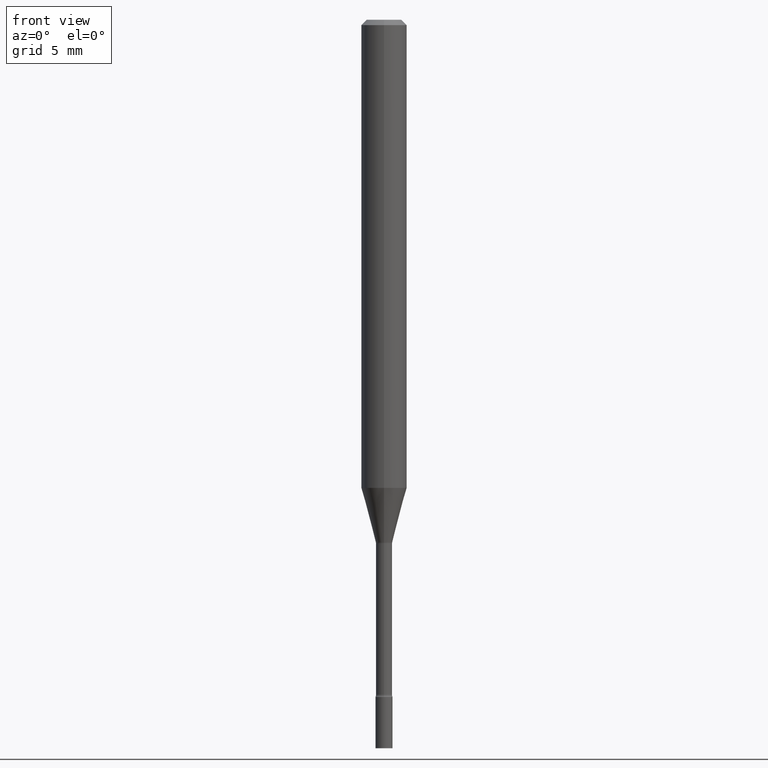
[diagram: clean part render]
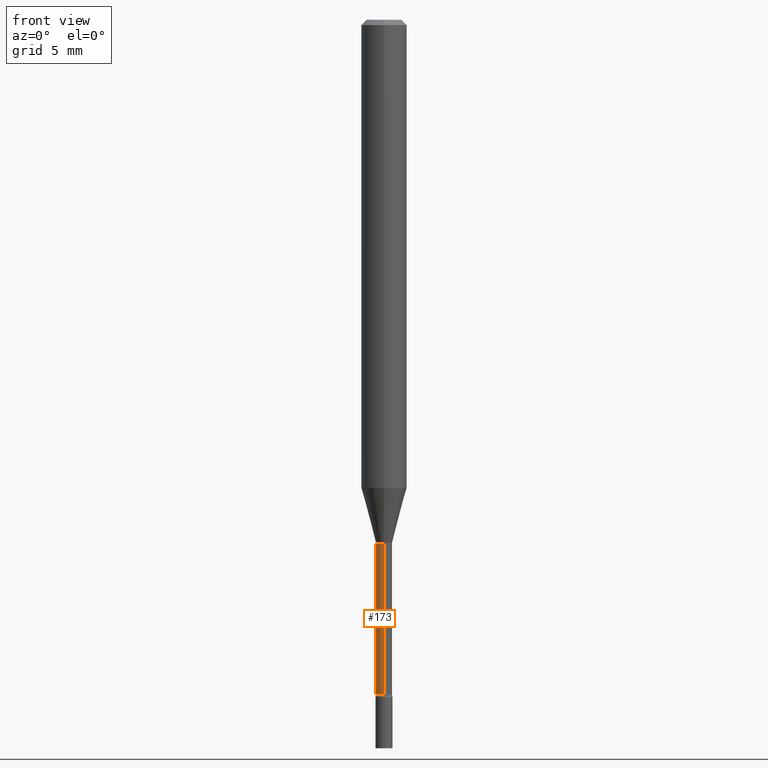
[diagram: same view with one face highlighted and labeled with its STEP entity id]
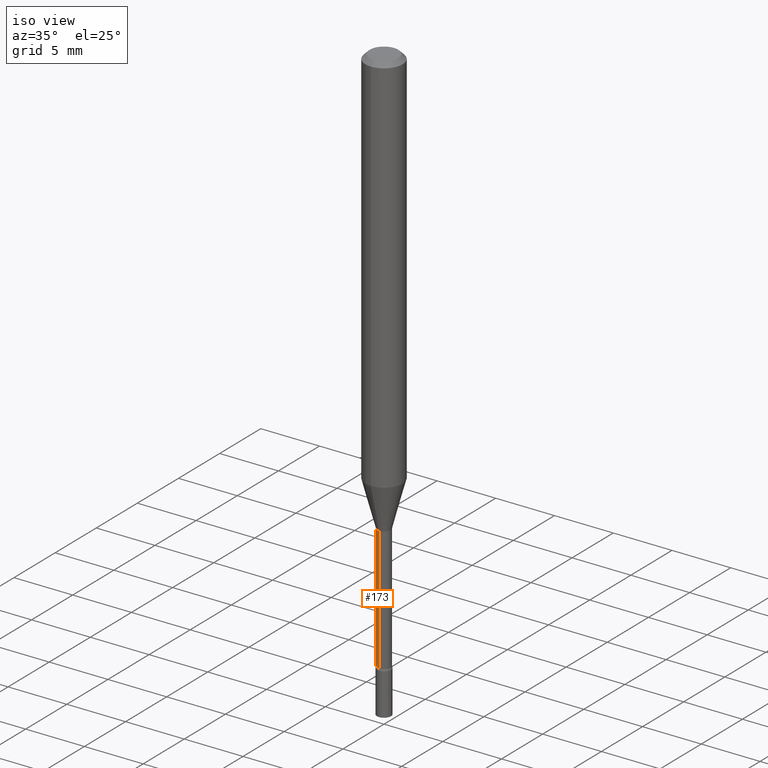
[diagram: same view with one face highlighted and labeled with its STEP entity id]
A machine part, front view. The second image highlights one B-rep face of the part: STEP entity #173.
A second angle (iso view) of the same face is appended — the face is thin or edge-on in the first view.
In plain terms, the highlighted cylindrical surface (edge-blend (fillet) strip) has radius 0.5613 mm, axis along (-0, 0, 1).
Its self-contained STEP definition (entity closure, byte-faithful):
#1 = ORIENTED_EDGE ( 'NONE', *, *, #243, .T. ) ;
#26 = AXIS2_PLACEMENT_3D ( 'NONE', #455, #99, #460 ) ;
#41 = DIRECTION ( 'NONE',  ( -2.445478591985837749E-29, 3.491467325019568091E-15, 1.000000000000000000 ) ) ;
#50 = EDGE_CURVE ( 'NONE', #59, #339, #416, .T. ) ;
#59 = VERTEX_POINT ( 'NONE', #182 ) ;
#82 = ORIENTED_EDGE ( 'NONE', *, *, #280, .T. ) ;
#84 = DIRECTION ( 'NONE',  ( -2.445478591985838029E-29, 3.491467325019567696E-15, 1.000000000000000000 ) ) ;
#88 = VECTOR ( 'NONE', #41, 39.37007874015748143 ) ;
#95 = DIRECTION ( 'NONE',  ( -2.445478591985837749E-29, 3.491467325019568091E-15, 1.000000000000000000 ) ) ;
#99 = DIRECTION ( 'NONE',  ( -2.445478591985838029E-29, 3.491467325019567696E-15, 1.000000000000000000 ) ) ;
#117 = CIRCLE ( 'NONE', #26, 0.02209999999999999812 ) ;
#160 = CARTESIAN_POINT ( 'NONE',  ( 1.570299446030275858E-16, 0.02209999999999497783, -1.437974787463811133 ) ) ;
#173 = ADVANCED_FACE ( 'NONE', ( #366 ), #477, .T. ) ;
#182 = CARTESIAN_POINT ( 'NONE',  ( 1.620037437533484049E-16, 0.02209999999999359352, -1.852672283192177582 ) ) ;
#187 = AXIS2_PLACEMENT_3D ( 'NONE', #519, #84, #390 ) ;
#193 = EDGE_CURVE ( 'NONE', #339, #283, #117, .T. ) ;
#229 = VECTOR ( 'NONE', #95, 39.37007874015748143 ) ;
#235 = LINE ( 'NONE', #299, #88 ) ;
#242 = CIRCLE ( 'NONE', #317, 0.02210000000000006057 ) ;
#243 = EDGE_CURVE ( 'NONE', #59, #381, #242, .T. ) ;
#275 = ORIENTED_EDGE ( 'NONE', *, *, #50, .F. ) ;
#280 = EDGE_CURVE ( 'NONE', #381, #283, #235, .T. ) ;
#283 = VERTEX_POINT ( 'NONE', #379 ) ;
#299 = CARTESIAN_POINT ( 'NONE',  ( -1.543234751768666594E-16, -0.02210000000000002587, 7.716142788293254101E-17 ) ) ;
#317 = AXIS2_PLACEMENT_3D ( 'NONE', #414, #324, #511 ) ;
#324 = DIRECTION ( 'NONE',  ( -2.445478591985838029E-29, 3.491467325019567696E-15, 1.000000000000000000 ) ) ;
#339 = VERTEX_POINT ( 'NONE', #160 ) ;
#366 = FACE_OUTER_BOUND ( 'NONE', #509, .T. ) ;
#377 = CARTESIAN_POINT ( 'NONE',  ( 1.570299446029823003E-16, 0.02210000000000002587, -7.716142788293254101E-17 ) ) ;
#379 = CARTESIAN_POINT ( 'NONE',  ( -1.543234751768313085E-16, -0.02210000000000501841, -1.437974787463811133 ) ) ;
#381 = VERTEX_POINT ( 'NONE', #446 ) ;
#390 = DIRECTION ( 'NONE',  ( -6.982962677686265922E-15, -1.000000000000000000, 3.491467325019568091E-15 ) ) ;
#414 = CARTESIAN_POINT ( 'NONE',  ( 4.530670406511994597E-29, -6.468544740734887756E-15, -1.852672283192177582 ) ) ;
#416 = LINE ( 'NONE', #377, #229 ) ;
#446 = CARTESIAN_POINT ( 'NONE',  ( -1.543234751768215957E-16, -0.02210000000000652762, -1.852672283192177582 ) ) ;
#455 = CARTESIAN_POINT ( 'NONE',  ( 3.516536558558135871E-29, -5.020641984631854302E-15, -1.437974787463811133 ) ) ;
#457 = ORIENTED_EDGE ( 'NONE', *, *, #193, .F. ) ;
#460 = DIRECTION ( 'NONE',  ( -6.982962677686265922E-15, -1.000000000000000000, 0.000000000000000000 ) ) ;
#477 = CYLINDRICAL_SURFACE ( 'NONE', #187, 0.02210000000000002587 ) ;
#509 = EDGE_LOOP ( 'NONE', ( #275, #1, #82, #457 ) ) ;
#511 = DIRECTION ( 'NONE',  ( -6.982962677686265922E-15, -1.000000000000000000, 0.000000000000000000 ) ) ;
#519 = CARTESIAN_POINT ( 'NONE',  ( 0.000000000000000000, 0.000000000000000000, 0.000000000000000000 ) ) ;